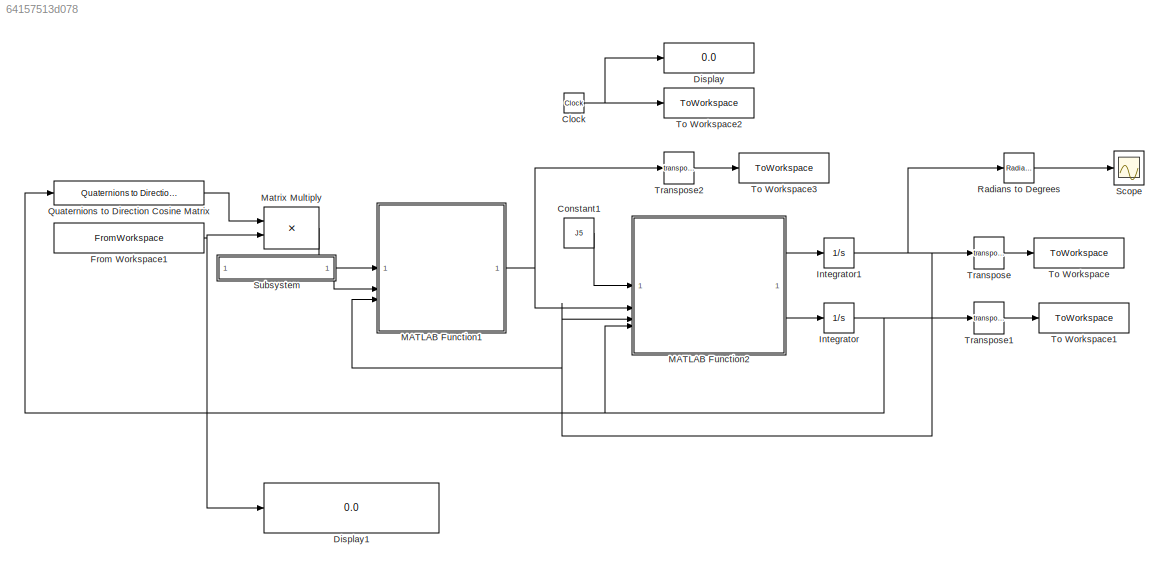
MODEL slx_64157513d078
KIND model
CONFIG AbsTol = auto
CONFIG EnableMultiTasking = off
CONFIG FixedStep = 1
CONFIG MaxStep = auto
CONFIG MinStep = auto
CONFIG RelTol = 1e-3
CONFIG SampleTimeConstraint = Unconstrained
CONFIG SolverName = FixedStepAuto
CONFIG StartTime = 0.0
CONFIG StopTime = T_sim
BLOCK [Clock] Clock
BLOCK [Constant] Constant1
  Value = J5
BLOCK [Display] Display
  Decimation = 1
BLOCK [Display] Display1
  Decimation = 1
BLOCK [FromWorkspace] From Workspace1
  SampleTime = 1
  VariableName = [t_pos' B_eci_T]
BLOCK [Integrator] Integrator
  InitialCondition = q0
BLOCK [Integrator] Integrator1
  InitialCondition = w0
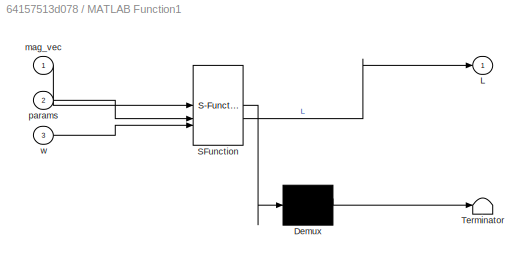
BLOCK [SubSystem] MATLAB Function1
  ErrorFcn = Stateflow.Translate.translate
  PermitHierarchicalResolution = ExplicitOnly
  SFBlockType = MATLAB Function
  TreatAsAtomicUnit = on
BLOCK [Demux] MATLAB Function1/ Demux 
  Outputs = 1
BLOCK [S-Function] MATLAB Function1/ SFunction 
  EnableBusSupport = on
  FunctionName = sf_sfun
  PortCounts = [3 2]
  SFcnIsStateOwnerBlock = off
  SFunctionDeploymentMode = off
  Tag = Stateflow S-Function 1
BLOCK [Terminator] MATLAB Function1/ Terminator 
BLOCK [Outport] MATLAB Function1/L
BLOCK [Inport] MATLAB Function1/mag_vec
BLOCK [Inport] MATLAB Function1/params
  Port = 2
BLOCK [Inport] MATLAB Function1/w
  Port = 3
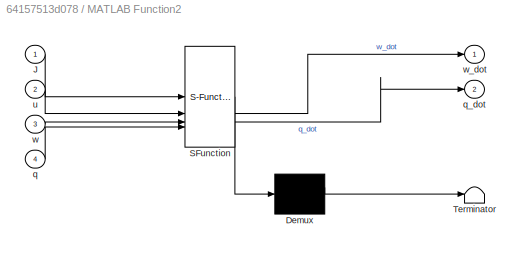
BLOCK [SubSystem] MATLAB Function2
  ErrorFcn = Stateflow.Translate.translate
  PermitHierarchicalResolution = ExplicitOnly
  SFBlockType = MATLAB Function
  TreatAsAtomicUnit = on
BLOCK [Demux] MATLAB Function2/ Demux 
  Outputs = 1
BLOCK [S-Function] MATLAB Function2/ SFunction 
  EnableBusSupport = on
  FunctionName = sf_sfun
  PortCounts = [4 3]
  SFcnIsStateOwnerBlock = off
  SFunctionDeploymentMode = off
  Tag = Stateflow S-Function 3
BLOCK [Terminator] MATLAB Function2/ Terminator 
BLOCK [Inport] MATLAB Function2/J
BLOCK [Inport] MATLAB Function2/q
  Port = 4
BLOCK [Outport] MATLAB Function2/q_dot
  Port = 2
BLOCK [Inport] MATLAB Function2/u
  Port = 2
BLOCK [Inport] MATLAB Function2/w
  Port = 3
BLOCK [Outport] MATLAB Function2/w_dot
BLOCK [Product] Matrix Multiply
  Multiplication = Matrix(*)
BLOCK [Reference] Quaternions to Direction Cosine Matrix  REF=sharedtransform/Quaternions to 
Direction Cosine Matrix
  LibrarySourceBlock = aerolibtransform2/Quaternions to \nDirection Cosine Matrix
  SourceBlock = sharedtransform/Quaternions to \nDirection Cosine Matrix
  SourceType = Quaternion2DCM
BLOCK [Reference] Radians to Degrees  REF=simulink_extras/Transformations/Radians
to Degrees
  SourceBlock = simulink_extras/Transformations/Radians\nto Degrees
  SourceType = RadiansToDegrees
BLOCK [Scope] Scope
  Floating = off
  NumInputPorts = 1
  ScopeSpecificationString = Simulink.scopes.TimeScopeBlockCfg('CurrentConfiguration', extmgr.ConfigurationSet(extmgr.Configuration('Core','General UI',true),extmgr.Configuration('Core','Source UI',true),extmgr.Configuration('Sources','WiredSimulink',true),extmgr.Configuration('Visuals','Time Domain',true,'SerializedDisplays',{struct('MinYLimReal','0.47296','MaxYLimReal','0.67296','YLabelReal','','MinYLimMag','0.47296','MaxYL...<+1513ch>
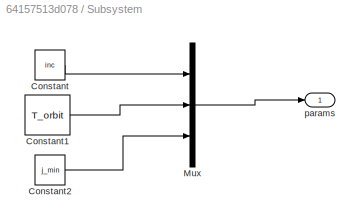
BLOCK [SubSystem] Subsystem
BLOCK [Constant] Subsystem/Constant
  Value = inc
BLOCK [Constant] Subsystem/Constant1
  Value = T_orbit
BLOCK [Constant] Subsystem/Constant2
  Value = j_min
BLOCK [Mux] Subsystem/Mux
  DisplayOption = bar
  Inputs = 3
BLOCK [Outport] Subsystem/params
BLOCK [ToWorkspace] To Workspace
  FixptAsFi = on
  MaxDataPoints = inf
  SampleTime = -1
  Save2DSignal = 2-D array (concatenate along first dimension)
  VariableName = w
BLOCK [ToWorkspace] To Workspace1
  FixptAsFi = on
  MaxDataPoints = inf
  SampleTime = -1
  Save2DSignal = 2-D array (concatenate along first dimension)
  VariableName = q
BLOCK [ToWorkspace] To Workspace2
  FixptAsFi = on
  MaxDataPoints = inf
  SampleTime = -1
  Save2DSignal = 2-D array (concatenate along first dimension)
  VariableName = t_simulink
BLOCK [ToWorkspace] To Workspace3
  FixptAsFi = on
  MaxDataPoints = inf
  SampleTime = -1
  Save2DSignal = 2-D array (concatenate along first dimension)
  VariableName = L_magneTorque
BLOCK [Math] Transpose
  Operator = transpose
BLOCK [Math] Transpose1
  Operator = transpose
BLOCK [Math] Transpose2
  Operator = transpose
NET Clock:1 -> Display:1, To Workspace2:1
LINE Constant1:1 -> MATLAB Function2:1
NET From Workspace1:1 -> Display1:1, Matrix Multiply:2
NET Integrator1:1 -> MATLAB Function1:3, MATLAB Function2:3, Radians to Degrees:1, Transpose:1
NET Integrator:1 -> MATLAB Function2:4, Quaternions to Direction Cosine Matrix:1, Transpose1:1
NET MATLAB Function1:1 -> MATLAB Function2:2, Transpose2:1
LINE MATLAB Function2:1 -> Integrator1:1
LINE MATLAB Function2:2 -> Integrator:1
LINE Matrix Multiply:1 -> MATLAB Function1:1
LINE Quaternions to Direction Cosine Matrix:1 -> Matrix Multiply:1
LINE Radians to Degrees:1 -> Scope:1
LINE Subsystem/Constant1:1 -> Subsystem/Mux:2
LINE Subsystem/Constant2:1 -> Subsystem/Mux:3
LINE Subsystem/Constant:1 -> Subsystem/Mux:1
LINE Subsystem/Mux:1 -> Subsystem/params:1
LINE Subsystem:1 -> MATLAB Function1:2
LINE Transpose1:1 -> To Workspace1:1
LINE Transpose2:1 -> To Workspace3:1
LINE Transpose:1 -> To Workspace:1
note: NET lines group one-source signal fan-out (src -> all destinations, sorted); 1:1 wires keep LINE
CHART MATLAB Function1 states=1 transitions=1
  STATE_LABEL 'eML_blk_kernel()'
  STATE_LABEL 'SCRIPT:\nfunction L = fcn(mag_vec, params, w)\n\ninc = params(1);\ninc = inc - deg2rad(11.5);\nt_orbit = params(2);\nj_min = params(3);\n\nk = (4*pi/t_orbit)*(1+sin(inc))*j_min;\n\nb_unit = mag_vec/norm(mag_vec);\n\nm = -(k/norm(mag_vec))*cross(b_unit,w);\n\nL = cross(m,mag_vec);\n\n\nend\n'
CHART MATLAB Function2 states=1 transitions=1
  STATE_LABEL 'eML_blk_kernel()'
  STATE_LABEL 'SCRIPT:\nfunction [w_dot,q_dot] = fcn(J,u,w,q)\n\n\nw1 = w(1);\nw2 = w(2);\nw3 = w(3);\n\nW = [0,w3,-w2,w1; -w3, 0, w1, w2; w2, -w1, 0, w3; -w1, -w2, -w3, 0];\n% output\nw_dot = inv(J)*(u-cross(w,J*w));\n\nq_dot = 0.5*W*q;\n\nend\n'
CHART  states=0 transitions=0
CHART  states=0 transitions=0
